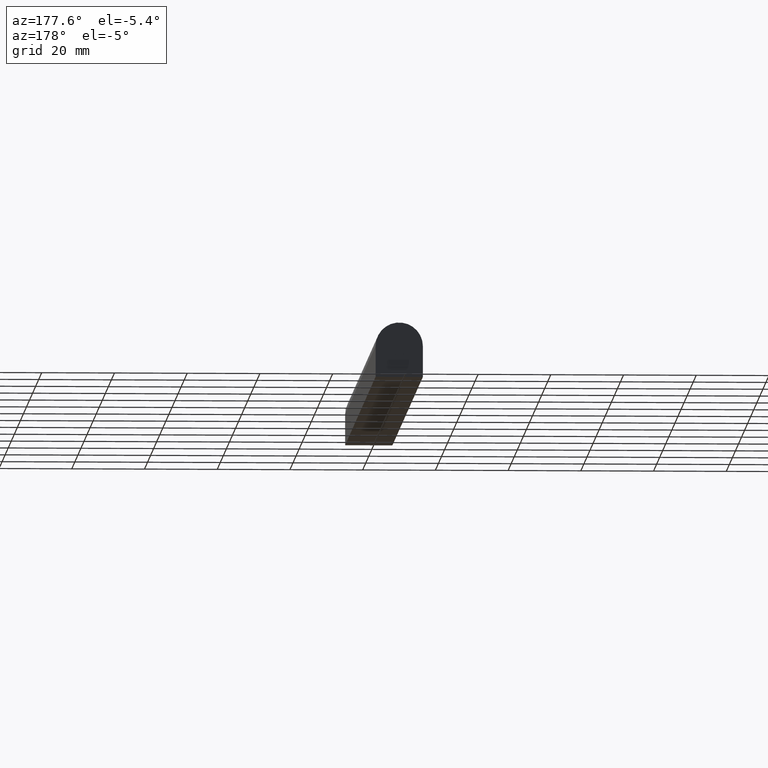
[diagram: clean part render]
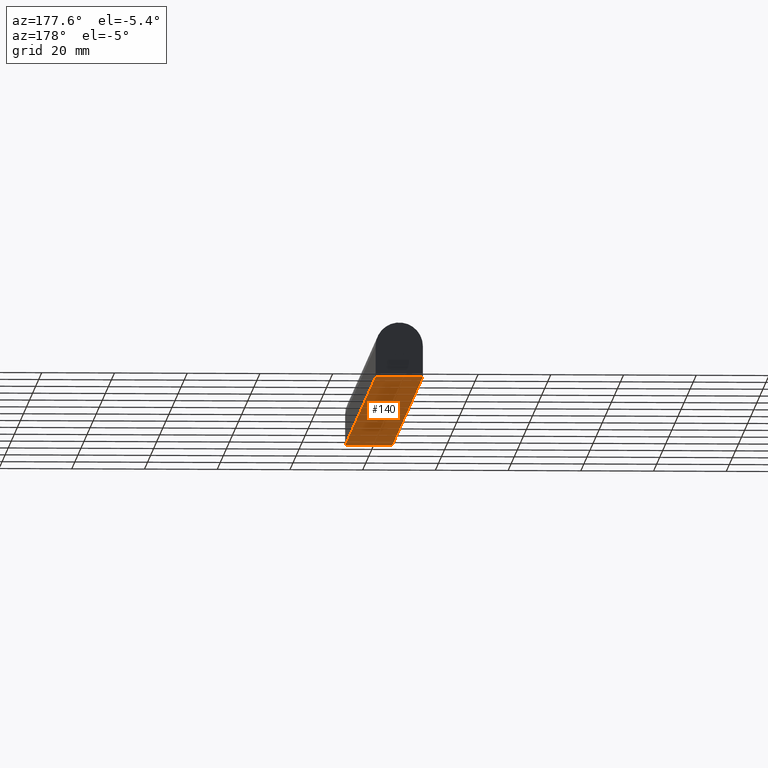
[diagram: same view with one face highlighted and labeled with its STEP entity id]
A machine part, auxiliary view. The second image highlights one B-rep face of the part: STEP entity #140.
In plain terms, the highlighted planar face has unit normal (0, 0, -1).
Its self-contained STEP definition (entity closure, byte-faithful):
#5 = CARTESIAN_POINT ( 'NONE',  ( -6.500000000000000000, 1000.000000000000000, -7.500000000000000000 ) ) ;
#6 = VERTEX_POINT ( 'NONE', #132 ) ;
#13 = EDGE_LOOP ( 'NONE', ( #149, #128, #19, #80 ) ) ;
#19 = ORIENTED_EDGE ( 'NONE', *, *, #103, .T. ) ;
#20 = FACE_OUTER_BOUND ( 'NONE', #13, .T. ) ;
#21 = VERTEX_POINT ( 'NONE', #194 ) ;
#27 = LINE ( 'NONE', #192, #167 ) ;
#38 = VECTOR ( 'NONE', #138, 1000.000000000000000 ) ;
#51 = CARTESIAN_POINT ( 'NONE',  ( -6.500000000000000000, 1000.000000000000000, -7.500000000000000000 ) ) ;
#65 = LINE ( 'NONE', #133, #204 ) ;
#72 = VECTOR ( 'NONE', #120, 1000.000000000000000 ) ;
#78 = LINE ( 'NONE', #51, #38 ) ;
#79 = DIRECTION ( 'NONE',  ( -1.000000000000000000, 0.0000000000000000000, 0.0000000000000000000 ) ) ;
#80 = ORIENTED_EDGE ( 'NONE', *, *, #177, .T. ) ;
#92 = EDGE_CURVE ( 'NONE', #187, #6, #78, .T. ) ;
#95 = PLANE ( 'NONE',  #175 ) ;
#103 = EDGE_CURVE ( 'NONE', #187, #21, #125, .T. ) ;
#116 = DIRECTION ( 'NONE',  ( 1.000000000000000000, -0.0000000000000000000, -0.0000000000000000000 ) ) ;
#117 = CARTESIAN_POINT ( 'NONE',  ( 0.0000000000000000000, 200.0000000000000000, -7.500000000000000000 ) ) ;
#120 = DIRECTION ( 'NONE',  ( 1.000000000000000000, -0.0000000000000000000, -0.0000000000000000000 ) ) ;
#123 = EDGE_CURVE ( 'NONE', #6, #188, #27, .T. ) ;
#125 = LINE ( 'NONE', #117, #72 ) ;
#128 = ORIENTED_EDGE ( 'NONE', *, *, #92, .F. ) ;
#132 = CARTESIAN_POINT ( 'NONE',  ( -6.500000000000000000, 0.0000000000000000000, -7.500000000000000000 ) ) ;
#133 = CARTESIAN_POINT ( 'NONE',  ( 6.500000000000000000, 1000.000000000000000, -7.500000000000000000 ) ) ;
#134 = DIRECTION ( 'NONE',  ( 0.0000000000000000000, 0.0000000000000000000, -1.000000000000000000 ) ) ;
#136 = DIRECTION ( 'NONE',  ( 0.0000000000000000000, -1.000000000000000000, 0.0000000000000000000 ) ) ;
#138 = DIRECTION ( 'NONE',  ( 0.0000000000000000000, -1.000000000000000000, 0.0000000000000000000 ) ) ;
#140 = ADVANCED_FACE ( 'NONE', ( #20 ), #95, .T. ) ;
#149 = ORIENTED_EDGE ( 'NONE', *, *, #123, .F. ) ;
#167 = VECTOR ( 'NONE', #116, 1000.000000000000000 ) ;
#175 = AXIS2_PLACEMENT_3D ( 'NONE', #5, #134, #79 ) ;
#177 = EDGE_CURVE ( 'NONE', #21, #188, #65, .T. ) ;
#187 = VERTEX_POINT ( 'NONE', #190 ) ;
#188 = VERTEX_POINT ( 'NONE', #224 ) ;
#190 = CARTESIAN_POINT ( 'NONE',  ( -6.500000000000000000, 200.0000000000000000, -7.500000000000000000 ) ) ;
#192 = CARTESIAN_POINT ( 'NONE',  ( 0.0000000000000000000, 0.0000000000000000000, -7.500000000000000000 ) ) ;
#194 = CARTESIAN_POINT ( 'NONE',  ( 6.500000000000000000, 200.0000000000000000, -7.500000000000000000 ) ) ;
#204 = VECTOR ( 'NONE', #136, 1000.000000000000000 ) ;
#224 = CARTESIAN_POINT ( 'NONE',  ( 6.500000000000000000, 0.0000000000000000000, -7.500000000000000000 ) ) ;